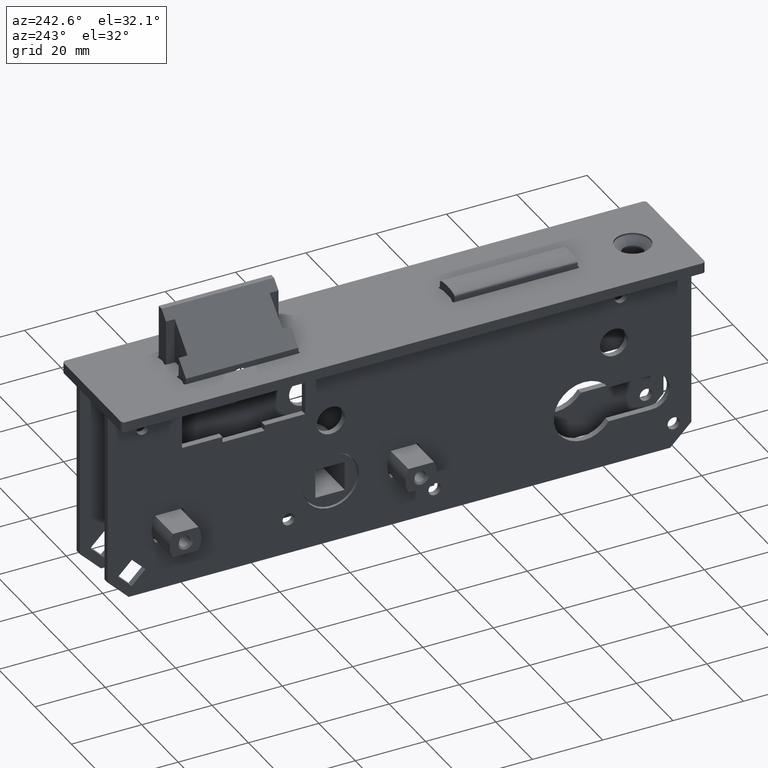
[diagram: clean part render]
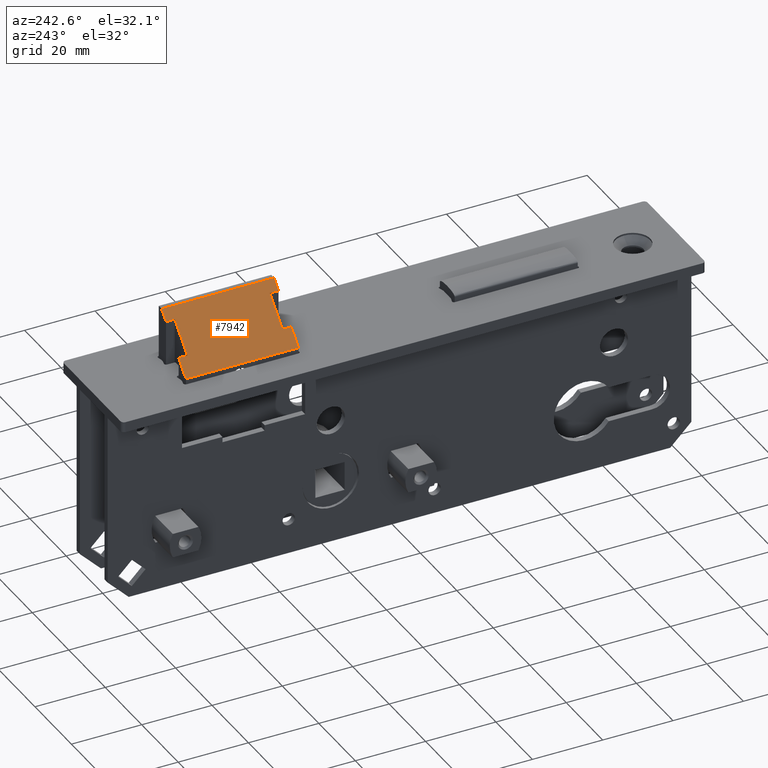
[diagram: same view with one face highlighted and labeled with its STEP entity id]
A machine part, auxiliary view. The second image highlights one B-rep face of the part: STEP entity #7942.
In plain terms, the highlighted planar face has unit normal (0.7071, -0, -0.7071).
Its self-contained STEP definition (entity closure, byte-faithful):
#6 = LINE ( 'NONE', #10547, #17786 ) ;
#260 = ORIENTED_EDGE ( 'NONE', *, *, #14077, .F. ) ;
#362 = ORIENTED_EDGE ( 'NONE', *, *, #13491, .F. ) ;
#683 = EDGE_CURVE ( 'NONE', #10979, #13241, #5204, .T. ) ;
#1217 = CARTESIAN_POINT ( 'NONE',  ( -7.475000000000016520, 16.00000000000000711, -2.900000000000000799 ) ) ;
#1360 = LINE ( 'NONE', #14864, #7786 ) ;
#1395 = DIRECTION ( 'NONE',  ( 8.673617379884027583E-16, 1.000000000000000000, -0.000000000000000000 ) ) ;
#1686 = DIRECTION ( 'NONE',  ( -0.7071067811865443531, 5.492394328418082340E-16, -0.7071067811865506814 ) ) ;
#2074 = DIRECTION ( 'NONE',  ( -0.7071067811865443531, 0.000000000000000000, -0.7071067811865506814 ) ) ;
#2555 = EDGE_CURVE ( 'NONE', #7401, #6431, #15721, .T. ) ;
#2589 = LINE ( 'NONE', #19596, #20855 ) ;
#2779 = DIRECTION ( 'NONE',  ( -3.122502256758254348E-15, 1.000000000000000000, -3.989863994746693394E-15 ) ) ;
#2952 = CARTESIAN_POINT ( 'NONE',  ( -7.475000000000044054, -16.00000000000000000, -2.900000000000000799 ) ) ;
#3122 = ORIENTED_EDGE ( 'NONE', *, *, #7502, .T. ) ;
#3508 = VECTOR ( 'NONE', #1686, 1000.000000000000000 ) ;
#3746 = DIRECTION ( 'NONE',  ( 0.7071067811865506814, -6.133173666733518246E-16, -0.7071067811865443531 ) ) ;
#3993 = VERTEX_POINT ( 'NONE', #13368 ) ;
#4642 = VERTEX_POINT ( 'NONE', #14145 ) ;
#4880 = VECTOR ( 'NONE', #16456, 1000.000000000000000 ) ;
#5040 = VECTOR ( 'NONE', #14771, 1000.000000000000000 ) ;
#5204 = LINE ( 'NONE', #5743, #6808 ) ;
#5316 = CARTESIAN_POINT ( 'NONE',  ( 3.474999999999992983, 13.50000000000000711, 8.050000000000105516 ) ) ;
#5340 = CARTESIAN_POINT ( 'NONE',  ( -7.475000000000044054, -16.00000000000000000, -2.900000000000000799 ) ) ;
#5397 = DIRECTION ( 'NONE',  ( 8.673617379884027583E-16, 1.000000000000000000, -0.000000000000000000 ) ) ;
#5454 = DIRECTION ( 'NONE',  ( 3.122502256758254348E-15, -1.000000000000000000, 3.989863994746693394E-15 ) ) ;
#5671 = ORIENTED_EDGE ( 'NONE', *, *, #13825, .F. ) ;
#5743 = CARTESIAN_POINT ( 'NONE',  ( -3.475000000000000533, 15.99999999999996270, 1.100000000000050493 ) ) ;
#5802 = ORIENTED_EDGE ( 'NONE', *, *, #14721, .T. ) ;
#6079 = LINE ( 'NONE', #5316, #14546 ) ;
#6168 = CARTESIAN_POINT ( 'NONE',  ( -3.474999999999993872, -13.50000000000000178, 1.100000000000081801 ) ) ;
#6431 = VERTEX_POINT ( 'NONE', #13686 ) ;
#6440 = EDGE_CURVE ( 'NONE', #12202, #4642, #6079, .T. ) ;
#6808 = VECTOR ( 'NONE', #5454, 1000.000000000000000 ) ;
#6849 = EDGE_CURVE ( 'NONE', #19511, #7401, #2589, .T. ) ;
#6985 = ORIENTED_EDGE ( 'NONE', *, *, #8589, .F. ) ;
#7167 = CARTESIAN_POINT ( 'NONE',  ( 3.474999999999992983, 13.50000000000000178, 8.050000000000109068 ) ) ;
#7401 = VERTEX_POINT ( 'NONE', #8573 ) ;
#7440 = CARTESIAN_POINT ( 'NONE',  ( 4.699999999999931788, -13.50000000000000178, 9.275000000000080291 ) ) ;
#7502 = EDGE_CURVE ( 'NONE', #10360, #4642, #17452, .T. ) ;
#7519 = VECTOR ( 'NONE', #2074, 1000.000000000000000 ) ;
#7786 = VECTOR ( 'NONE', #2779, 1000.000000000000000 ) ;
#7942 = ADVANCED_FACE ( 'NONE', ( #16039 ), #13718, .F. ) ;
#8236 = ORIENTED_EDGE ( 'NONE', *, *, #12682, .F. ) ;
#8573 = CARTESIAN_POINT ( 'NONE',  ( -3.475000000000000533, -16.00000000000000355, 1.100000000000078249 ) ) ;
#8589 = EDGE_CURVE ( 'NONE', #11779, #3993, #12830, .T. ) ;
#8859 = DIRECTION ( 'NONE',  ( -0.7071067811865443531, 0.000000000000000000, -0.7071067811865506814 ) ) ;
#9779 = CARTESIAN_POINT ( 'NONE',  ( 1.224999999999976996, 13.50000000000000178, 5.800000000000072653 ) ) ;
#9980 = CARTESIAN_POINT ( 'NONE',  ( 5.924999999999832845, -16.00000000000001066, 10.49999999999999822 ) ) ;
#9995 = ORIENTED_EDGE ( 'NONE', *, *, #21583, .T. ) ;
#10185 = VECTOR ( 'NONE', #18006, 1000.000000000000000 ) ;
#10286 = CARTESIAN_POINT ( 'NONE',  ( -7.475000000000044054, -16.00000000000000000, -2.900000000000000799 ) ) ;
#10360 = VERTEX_POINT ( 'NONE', #17449 ) ;
#10384 = LINE ( 'NONE', #9980, #13797 ) ;
#10426 = CARTESIAN_POINT ( 'NONE',  ( -7.475000000000016520, 16.00000000000000711, -2.900000000000000799 ) ) ;
#10547 = CARTESIAN_POINT ( 'NONE',  ( -7.475000000000044054, -16.00000000000000000, -2.900000000000000799 ) ) ;
#10578 = DIRECTION ( 'NONE',  ( -0.7071067811865443531, 5.492394328418082340E-16, -0.7071067811865506814 ) ) ;
#10979 = VERTEX_POINT ( 'NONE', #11312 ) ;
#11312 = CARTESIAN_POINT ( 'NONE',  ( -3.475000000000000533, 16.00000000000000355, 1.100000000000050493 ) ) ;
#11446 = CARTESIAN_POINT ( 'NONE',  ( 5.924999999999832845, -16.00000000000000000, 10.50000000000000000 ) ) ;
#11669 = CARTESIAN_POINT ( 'NONE',  ( -7.475000000000016520, 16.00000000000000711, -2.900000000000000799 ) ) ;
#11779 = VERTEX_POINT ( 'NONE', #11446 ) ;
#12202 = VERTEX_POINT ( 'NONE', #7167 ) ;
#12608 = DIRECTION ( 'NONE',  ( -3.122502256758254348E-15, -1.000000000000000000, -2.255140518769871705E-15 ) ) ;
#12682 = EDGE_CURVE ( 'NONE', #3993, #13389, #1360, .T. ) ;
#12794 = LINE ( 'NONE', #11669, #10185 ) ;
#12830 = LINE ( 'NONE', #2952, #4880 ) ;
#13241 = VERTEX_POINT ( 'NONE', #14663 ) ;
#13368 = CARTESIAN_POINT ( 'NONE',  ( 3.475000000000005862, -16.00000000000000711, 8.050000000000148148 ) ) ;
#13389 = VERTEX_POINT ( 'NONE', #19891 ) ;
#13491 = EDGE_CURVE ( 'NONE', #13389, #19511, #20438, .T. ) ;
#13686 = CARTESIAN_POINT ( 'NONE',  ( -7.475000000000044054, -16.00000000000000000, -2.900000000000000799 ) ) ;
#13718 = PLANE ( 'NONE',  #17923 ) ;
#13797 = VECTOR ( 'NONE', #1395, 1000.000000000000000 ) ;
#13825 = EDGE_CURVE ( 'NONE', #6431, #18791, #6, .T. ) ;
#14077 = EDGE_CURVE ( 'NONE', #13241, #12202, #15649, .T. ) ;
#14145 = CARTESIAN_POINT ( 'NONE',  ( 3.474999999999999201, 16.00000000000000000, 8.050000000000112621 ) ) ;
#14314 = EDGE_LOOP ( 'NONE', ( #362, #8236, #6985, #5802, #3122, #14495, #260, #16950, #9995, #5671, #18014, #14422 ) ) ;
#14422 = ORIENTED_EDGE ( 'NONE', *, *, #6849, .F. ) ;
#14495 = ORIENTED_EDGE ( 'NONE', *, *, #6440, .F. ) ;
#14546 = VECTOR ( 'NONE', #18742, 1000.000000000000000 ) ;
#14563 = VECTOR ( 'NONE', #10578, 1000.000000000000000 ) ;
#14663 = CARTESIAN_POINT ( 'NONE',  ( -3.474999999999992983, 13.50000000000000178, 1.100000000000060485 ) ) ;
#14721 = EDGE_CURVE ( 'NONE', #11779, #10360, #10384, .T. ) ;
#14771 = DIRECTION ( 'NONE',  ( 0.7071067811865443531, 0.000000000000000000, 0.7071067811865506814 ) ) ;
#14864 = CARTESIAN_POINT ( 'NONE',  ( 3.475000000000007638, -16.00000000000001066, 8.050000000000148148 ) ) ;
#15649 = LINE ( 'NONE', #9779, #5040 ) ;
#15721 = LINE ( 'NONE', #10286, #3508 ) ;
#16039 = FACE_OUTER_BOUND ( 'NONE', #14314, .T. ) ;
#16456 = DIRECTION ( 'NONE',  ( -0.7071067811865443531, 5.492394328418082340E-16, -0.7071067811865506814 ) ) ;
#16950 = ORIENTED_EDGE ( 'NONE', *, *, #683, .F. ) ;
#17449 = CARTESIAN_POINT ( 'NONE',  ( 5.924999999999861267, 15.99999999999999645, 10.49999999999999822 ) ) ;
#17452 = LINE ( 'NONE', #10426, #14563 ) ;
#17786 = VECTOR ( 'NONE', #5397, 1000.000000000000000 ) ;
#17923 = AXIS2_PLACEMENT_3D ( 'NONE', #5340, #3746, #8859 ) ;
#18006 = DIRECTION ( 'NONE',  ( -0.7071067811865443531, 5.492394328418082340E-16, -0.7071067811865506814 ) ) ;
#18014 = ORIENTED_EDGE ( 'NONE', *, *, #2555, .F. ) ;
#18742 = DIRECTION ( 'NONE',  ( 2.775557561562893718E-15, 1.000000000000000000, 1.908195823574507920E-15 ) ) ;
#18791 = VERTEX_POINT ( 'NONE', #1217 ) ;
#19511 = VERTEX_POINT ( 'NONE', #6168 ) ;
#19596 = CARTESIAN_POINT ( 'NONE',  ( -3.474999999999992983, -13.49999999999998046, 1.100000000000083578 ) ) ;
#19891 = CARTESIAN_POINT ( 'NONE',  ( 3.474999999999999645, -13.50000000000000178, 8.050000000000137490 ) ) ;
#20438 = LINE ( 'NONE', #7440, #7519 ) ;
#20855 = VECTOR ( 'NONE', #12608, 1000.000000000000000 ) ;
#21583 = EDGE_CURVE ( 'NONE', #10979, #18791, #12794, .T. ) ;